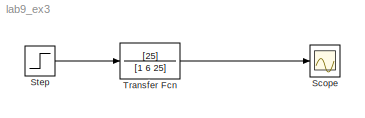
MODEL lab9_ex3
KIND model
BLOCK [Scope] Scope
  DataFormat = StructureWithTime
  NumInputPorts = 1
  Ports = [1]
BLOCK [Step] Step
  SampleTime = 0
  Time = 0.02
BLOCK [TransferFcn] Transfer Fcn
  Denominator = [1 6 25]
  Numerator = [25]
LINE Step:1 -> Transfer Fcn:1
LINE Transfer Fcn:1 -> Scope:1
